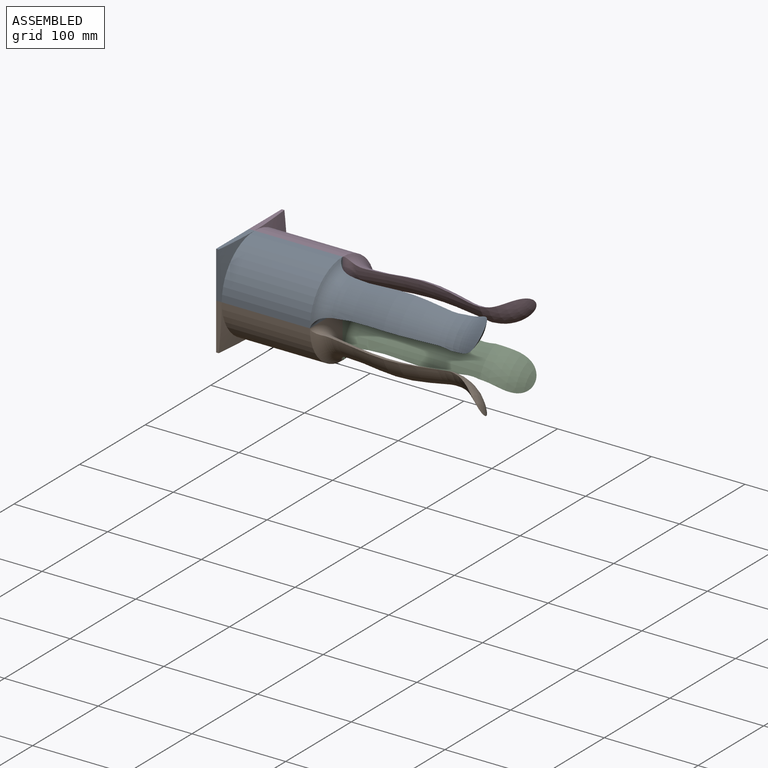
[diagram: assembled view]
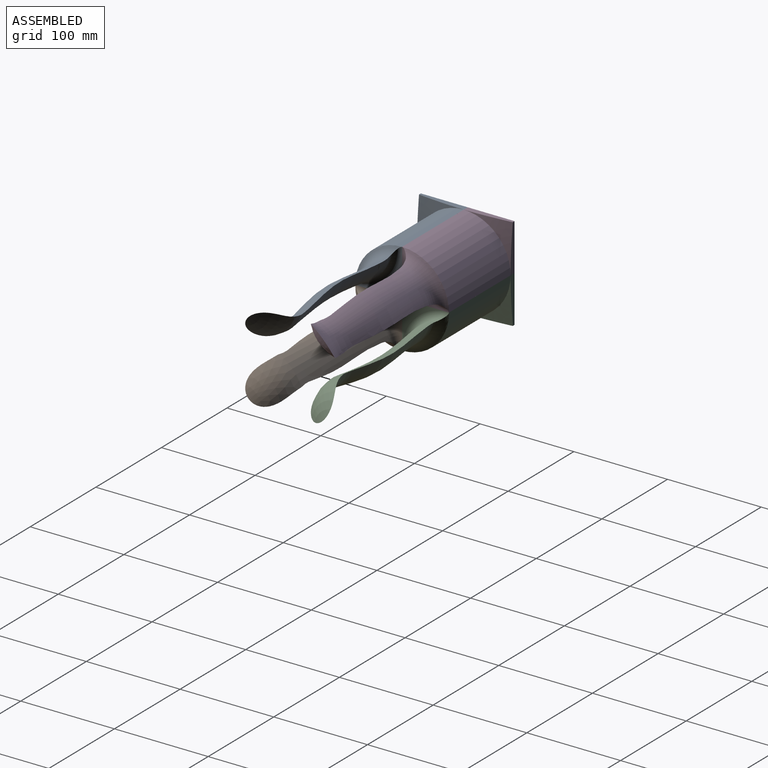
[diagram: assembled view, second angle]
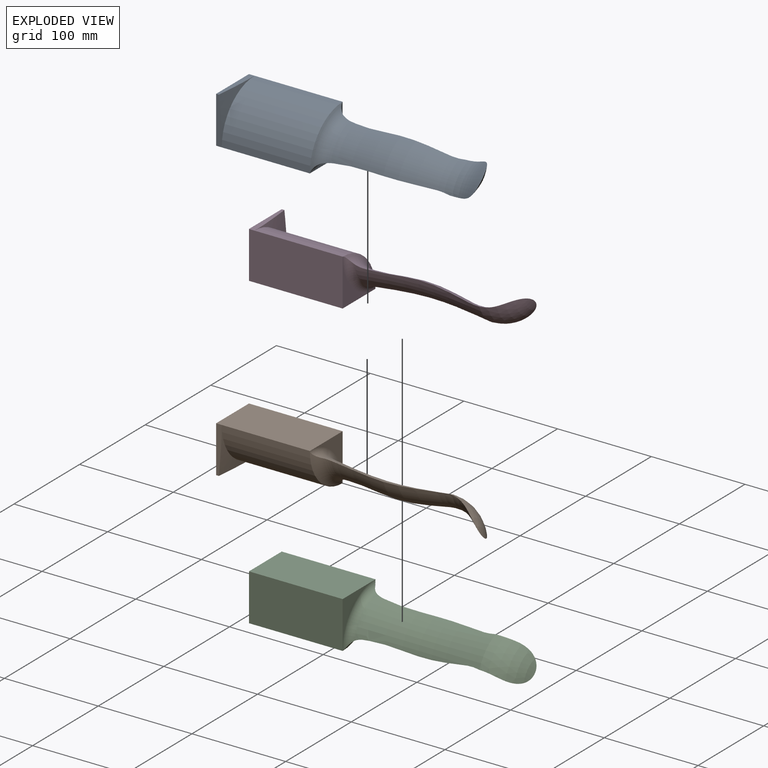
[diagram: exploded view]
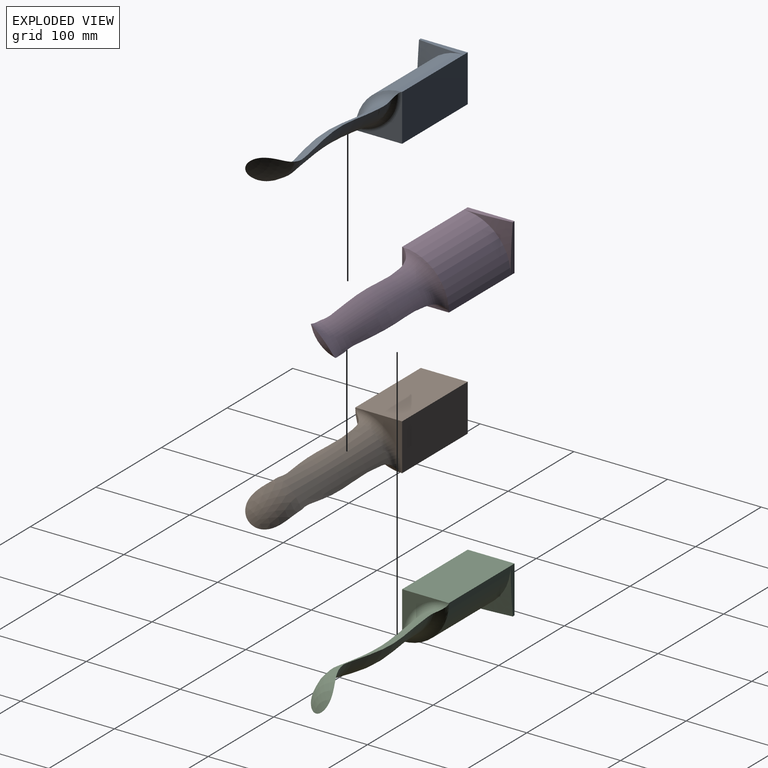
[diagram: exploded view, second angle]
ASSEMBLY  parts=4 mates=3
PART A: 12 faces, bbox 277.4x75.2x75.2 mm
  f0: revolved ~177.36x55.93mm, area 7371.9mm2, adj f7,f9,f10,f11
  f1: plane 100x50mm, normal (0,0,1), area 5000mm2, adj f2,f4,f5,f7,f8
  f2: plane 50.01x5.96mm, normal (0,-1,0), area 241.7mm2, adj f1,f3,f5,f6
  f3: plane 50.01x5.96mm, normal (0,0,-1), area 241.7mm2, adj f2,f4,f5,f6
  f4: plane 100x50mm, normal (0,1,0), area 5000mm2, adj f1,f3,f5,f7,f8
  f5: plane 50x50mm, normal (-1,0,0), area 2500mm2, adj f1,f2,f3,f4
  f6: cone r=89.31mm half-angle=81.4deg, axis (-1,0,0), area 542.6mm2, adj f2,f3,f7
  f7: cylinder r=50mm len=94.05mm, axis (1,0,0), area 7386.5mm2, adj f0,f1,f4,f6
  f8: plane 50x50mm, normal (1,0,0), area 536.5mm2, adj f1,f4,f9
  f9: torus R=50.35mm, axis (1,0,0), area 739.2mm2, adj f0,f8,f10
  f10: revolved ~131.08x33.82mm, area 5198.2mm2, adj f0,f9,f11
  f11: sphere r=42.64mm, area 1656mm2, adj f0,f10
PART B: same geometry as A
PART C: same geometry as A
PART D: same geometry as A
PLACE A rot(axis=(-1,0,0),90deg) t=(-84.58,-42.3,578.59)mm
PLACE B t=(-84.58,-592.3,-71.41)mm
PLACE C rot(axis=(1,0,0),90deg) t=(-84.58,57.7,-621.41)mm
PLACE D rot(axis=(1,0,0),180deg) t=(-84.58,607.7,28.59)mm
MATE fastened C.f4 <-> D.f1  axis (0,0,1) through (-34.58,32.7,-21.41)mm
MATE fastened D.f4 <-> A.f1  axis (0,-1,0) through (-34.58,7.7,3.59)mm
MATE fastened A.f4 <-> B.f1  axis (0,0,-1) through (-34.58,-17.3,-21.41)mm
